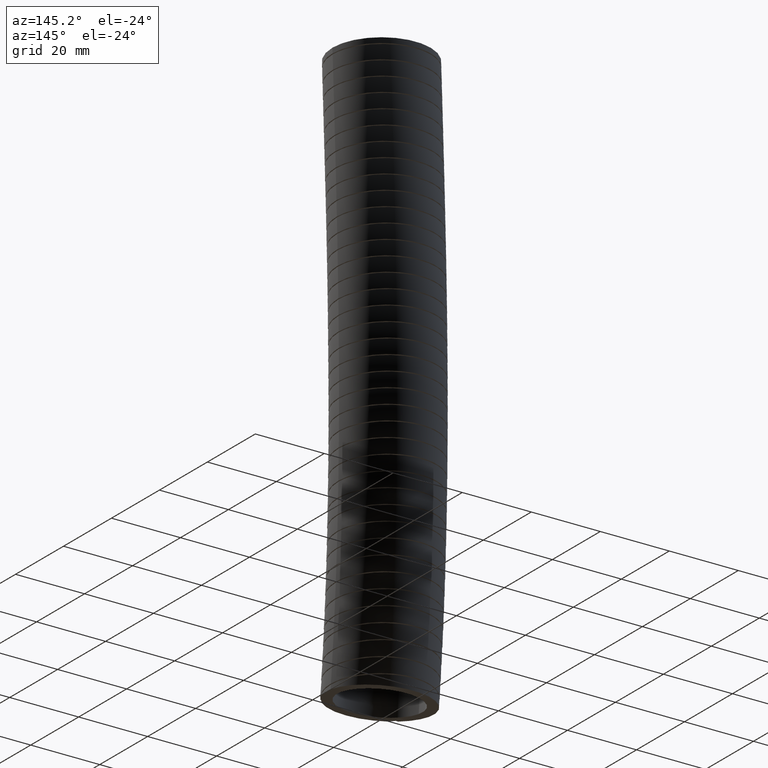
[diagram: clean part render]
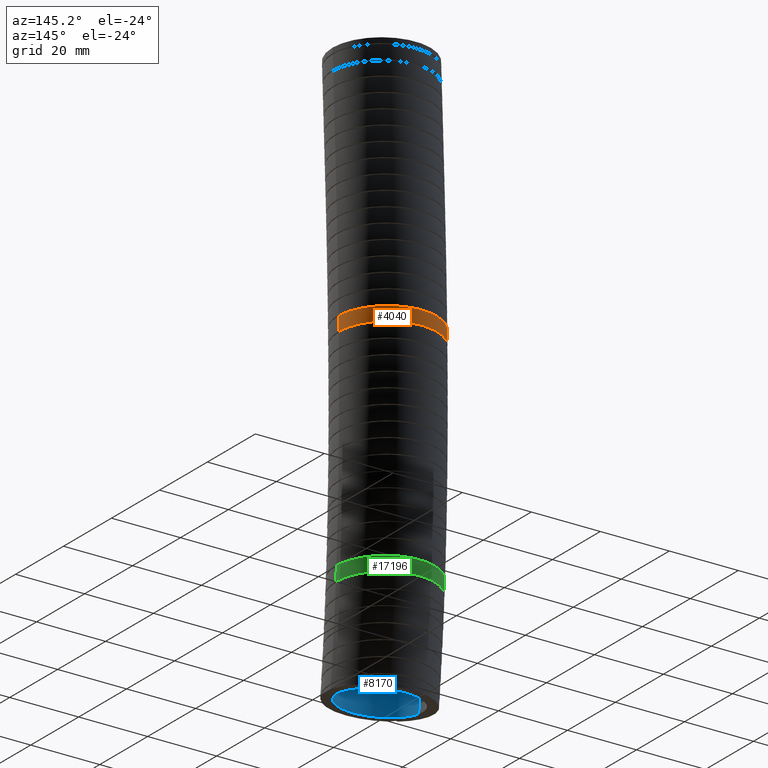
[diagram: same view with three faces highlighted in distinct colors, each labeled with its STEP entity id]
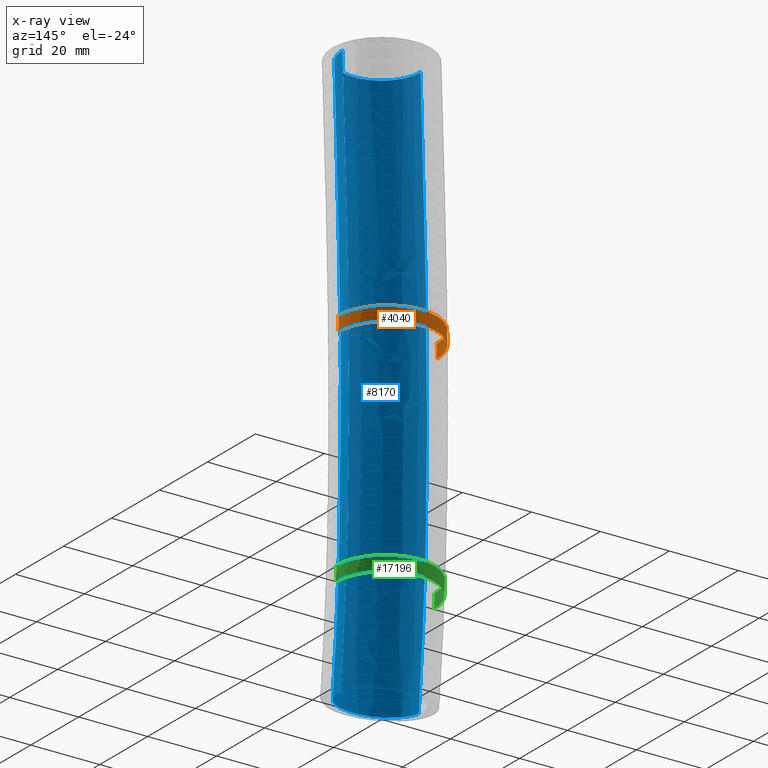
[diagram: x-ray of the same camera — body ghosted, the three highlighted faces saturated]
A machine part, auxiliary view with three faces highlighted in distinct colors.
The next image is the same camera in x-ray (body ghosted, the three faces saturated) — at least one of them is partly hidden behind the body in this view.
Their STEP definitions:

[orange] entity #4040 — the highlighted face is a freeform B-spline surface patch.
#95 = CARTESIAN_POINT ( 'NONE',  ( 0.5599999999999999400, -0.02999999999999999900, -6.569999999999999400 ) ) ;
#96 = CARTESIAN_POINT ( 'NONE',  ( 0.5600000000000000500, -0.01258014398173745700, -6.380031713690431900 ) ) ;
#97 = CARTESIAN_POINT ( 'NONE',  ( 0.5600000000000000500, 0.07545784880698555600, -5.419953363865133200 ) ) ;
#98 = CARTESIAN_POINT ( 'NONE',  ( 0.5600000000000000500, 0.1443774054838786700, -3.232434222864089000 ) ) ;
#99 = CARTESIAN_POINT ( 'NONE',  ( 0.5600000000000000500, 0.05489119717643119900, -1.228947034284316500 ) ) ;
#100 = CARTESIAN_POINT ( 'NONE',  ( 0.5600000000000000500, 0.0000000000000000000, 0.0000000000000000000 ) ) ;
#101 = CARTESIAN_POINT ( 'NONE',  ( 0.5599999999999999400, 1.079646258180001500, -6.721938085110752900 ) ) ;
#102 = CARTESIAN_POINT ( 'NONE',  ( 0.5599999999999999400, 1.097787370148357100, -6.524540619502538200 ) ) ;
#103 = CARTESIAN_POINT ( 'NONE',  ( 0.5600000000000000500, 1.189470509376095600, -5.526916033196593000 ) ) ;
#104 = CARTESIAN_POINT ( 'NONE',  ( 0.5600000000000000500, 1.265865288775000400, -3.259871941086935900 ) ) ;
#105 = CARTESIAN_POINT ( 'NONE',  ( 0.5600000000000001600, 1.175456879146091100, -1.239378647153338800 ) ) ;
#106 = CARTESIAN_POINT ( 'NONE',  ( 0.5600000000000000500, 1.120000000000000100, 0.0000000000000000000 ) ) ;
#107 = CARTESIAN_POINT ( 'NONE',  ( -0.5599999999999997200, 1.079646258180001500, -6.721938085110752900 ) ) ;
#108 = CARTESIAN_POINT ( 'NONE',  ( -0.5599999999999997200, 1.097787370148357100, -6.524540619502538200 ) ) ;
#109 = CARTESIAN_POINT ( 'NONE',  ( -0.5599999999999999400, 1.189470509376095600, -5.526916033196593000 ) ) ;
#110 = CARTESIAN_POINT ( 'NONE',  ( -0.5599999999999997200, 1.265865288775000400, -3.259871941086935900 ) ) ;
#111 = CARTESIAN_POINT ( 'NONE',  ( -0.5599999999999999400, 1.175456879146091100, -1.239378647153338800 ) ) ;
#112 = CARTESIAN_POINT ( 'NONE',  ( -0.5599999999999999400, 1.120000000000000100, 0.0000000000000000000 ) ) ;
#113 = CARTESIAN_POINT ( 'NONE',  ( -0.5599999999999999400, -0.02999999999999993300, -6.569999999999999400 ) ) ;
#114 = CARTESIAN_POINT ( 'NONE',  ( -0.5600000000000000500, -0.01258014398173738600, -6.380031713690431900 ) ) ;
#115 = CARTESIAN_POINT ( 'NONE',  ( -0.5600000000000000500, 0.07545784880698562500, -5.419953363865133200 ) ) ;
#116 = CARTESIAN_POINT ( 'NONE',  ( -0.5600000000000000500, 0.1443774054838787000, -3.232434222864089000 ) ) ;
#117 = CARTESIAN_POINT ( 'NONE',  ( -0.5600000000000000500, 0.05489119717643127500, -1.228947034284316500 ) ) ;
#118 = CARTESIAN_POINT ( 'NONE',  ( -0.5600000000000000500, 6.858022075225177600E-017, 0.0000000000000000000 ) ) ;
#119 = CARTESIAN_POINT ( 'NONE',  ( -0.5600000000000000500, -1.139646258180001100, -6.418061914889245900 ) ) ;
#120 = CARTESIAN_POINT ( 'NONE',  ( -0.5600000000000000500, -1.122947658111831800, -6.235522807878326500 ) ) ;
#121 = CARTESIAN_POINT ( 'NONE',  ( -0.5600000000000001600, -1.038554811762124200, -5.312990694533672500 ) ) ;
#122 = CARTESIAN_POINT ( 'NONE',  ( -0.5600000000000002800, -0.9771104778072428100, -3.204996504641241200 ) ) ;
#123 = CARTESIAN_POINT ( 'NONE',  ( -0.5600000000000002800, -1.065674484793228200, -1.218515421415294200 ) ) ;
#124 = CARTESIAN_POINT ( 'NONE',  ( -0.5600000000000001600, -1.119999999999999900, 0.0000000000000000000 ) ) ;
#125 = CARTESIAN_POINT ( 'NONE',  ( 0.5599999999999999400, -1.139646258180001100, -6.418061914889245900 ) ) ;
#126 = CARTESIAN_POINT ( 'NONE',  ( 0.5599999999999999400, -1.122947658111831800, -6.235522807878326500 ) ) ;
#127 = CARTESIAN_POINT ( 'NONE',  ( 0.5600000000000000500, -1.038554811762124200, -5.312990694533672500 ) ) ;
#128 = CARTESIAN_POINT ( 'NONE',  ( 0.5600000000000000500, -0.9771104778072428100, -3.204996504641241200 ) ) ;
#3286 = EDGE_CURVE ( 'NONE', #8610, #8572, #10671, .T. ) ;
#3982 = EDGE_LOOP ( 'NONE', ( #4015, #4033, #4027, #4020 ) ) ;
#3997 = EDGE_CURVE ( 'NONE', #8569, #8571, #11110, .T. ) ;
#4015 = ORIENTED_EDGE ( 'NONE', *, *, #8570, .F. ) ;
#4020 = ORIENTED_EDGE ( 'NONE', *, *, #3286, .T. ) ;
#4027 = ORIENTED_EDGE ( 'NONE', *, *, #8607, .T. ) ;
#4033 = ORIENTED_EDGE ( 'NONE', *, *, #3997, .T. ) ;
#4040 = ADVANCED_FACE ( 'NONE', ( #11112 ), #11165, .T. ) ;
#6721 = CARTESIAN_POINT ( 'NONE',  ( -0.5600000000000000500, 0.09975136047266827700, -2.788193642924669600 ) ) ;
#6734 = CARTESIAN_POINT ( 'NONE',  ( -0.5600000000000000500, 0.1023773698500384900, -2.948170664740897200 ) ) ;
#6735 = CARTESIAN_POINT ( 'NONE',  ( -0.5600000000000000500, 0.1015870456461830800, -2.894848570316842300 ) ) ;
#6736 = CARTESIAN_POINT ( 'NONE',  ( -0.5600000000000000500, 0.1007101419526706100, -2.841522830388337500 ) ) ;
#6737 = CARTESIAN_POINT ( 'NONE',  ( -0.5600000000000000500, 0.09975136047266827700, -2.788193642924669600 ) ) ;
#6738 = CARTESIAN_POINT ( 'NONE',  ( 0.5599999999999999400, 0.09975136046577001700, -2.788193642732824900 ) ) ;
#6739 = B_SPLINE_CURVE_WITH_KNOTS ( 'NONE', 3,
 ( #6737, #6736, #6735, #6734 ),
 .UNSPECIFIED., .F., .F.,
 ( 4, 4 ),
 ( 0.4236618517434954100, 0.4479899675309305100 ),
 .UNSPECIFIED. ) ;
#6740 = CARTESIAN_POINT ( 'NONE',  ( -0.5600000000000000500, 0.1023773698500384900, -2.948170664740897200 ) ) ;
#7108 = B_SPLINE_CURVE_WITH_KNOTS ( 'NONE', 3,
 ( #7125, #7124, #7123, #7120 ),
 .UNSPECIFIED., .F., .F.,
 ( 4, 4 ),
 ( 0.4236618517143137000, 0.4479899675017429700 ),
 .UNSPECIFIED. ) ;
#7117 = CARTESIAN_POINT ( 'NONE',  ( 0.5600000000000000500, 0.1023773698443505900, -2.948170664549020900 ) ) ;
#7120 = CARTESIAN_POINT ( 'NONE',  ( 0.5600000000000000500, 0.1023773698443505900, -2.948170664549020900 ) ) ;
#7123 = CARTESIAN_POINT ( 'NONE',  ( 0.5600000000000000500, 0.1015870456431309000, -2.894848570124927800 ) ) ;
#7124 = CARTESIAN_POINT ( 'NONE',  ( 0.5600000000000000500, 0.1007101419494165600, -2.841522830196426600 ) ) ;
#7125 = CARTESIAN_POINT ( 'NONE',  ( 0.5599999999999999400, 0.09975136046577001700, -2.788193642732824900 ) ) ;
#8569 = VERTEX_POINT ( 'NONE', #6721 ) ;
#8570 = EDGE_CURVE ( 'NONE', #8569, #8572, #6739, .T. ) ;
#8571 = VERTEX_POINT ( 'NONE', #6738 ) ;
#8572 = VERTEX_POINT ( 'NONE', #6740 ) ;
#8607 = EDGE_CURVE ( 'NONE', #8571, #8610, #7108, .T. ) ;
#8610 = VERTEX_POINT ( 'NONE', #7117 ) ;
#10671 = B_SPLINE_CURVE_WITH_KNOTS ( 'NONE', 3,
 ( #10754, #10753, #10752, #10751, #10750, #10749, #10748, #10747, #10746, #10745, #10744, #10743, #10742, #10741, #10740, #10739, #10738, #10737, #10736, #10735, #10734, #10733, #10732, #10731, #10730, #10729, #10728, #10727, #10726, #10725, #10724, #10723, #10722, #10721, #10720, #10794, #10793, #10792, #10791, #10790, #10789, #10788, #10787, #10786, #10785, #10784, #10783, #10782, #10781 ),
 .UNSPECIFIED., .F., .F.,
 ( 4, 2, 2, 2, 2, 2, 2, 2, 2, 2, 2, 2, 2, 2, 2, 2, 2, 2, 1, 2, 2, 2, 2, 2, 4 ),
 ( 0.0000000000000000000, 0.001404168744246958500, 0.002808337488493918200, 0.005616674976987833000, 0.007020843721234789500, 0.008425012465481744200, 0.01123334995397566200, 0.01263751869822261900, 0.01404168744246957500, 0.01685002493096349200, 0.01965836241945740800, 0.02106253116370436500, 0.02246669990795132500, 0.02527503739644524500, 0.02667920614069220100, 0.02808337488493916100, 0.03089171237343307400, 0.03229588111768003800, 0.03370004986192699100, 0.03510421860617395100, 0.03650838735042091100, 0.03931672483891483800, 0.04072089358316179100, 0.04212506232740875800, 0.04493339981590269100 ),
 .UNSPECIFIED. ) ;
#10720 = CARTESIAN_POINT ( 'NONE',  ( -0.3414170387211084600, 0.5463829283431063100, -2.948170664740898100 ) ) ;
#10721 = CARTESIAN_POINT ( 'NONE',  ( -0.3265335964584056800, 0.5574311805196637800, -2.948170664740894500 ) ) ;
#10722 = CARTESIAN_POINT ( 'NONE',  ( -0.2806239627746137100, 0.5881054366915500200, -2.948170664740895000 ) ) ;
#10723 = CARTESIAN_POINT ( 'NONE',  ( -0.2484374304007585200, 0.6052881078929484000, -2.948170664740898900 ) ) ;
#10724 = CARTESIAN_POINT ( 'NONE',  ( -0.1978442043573522500, 0.6262791682959105700, -2.948170664740898900 ) ) ;
#10725 = CARTESIAN_POINT ( 'NONE',  ( -0.1805914654711290600, 0.6324733266288334900, -2.948170664740896700 ) ) ;
#10726 = CARTESIAN_POINT ( 'NONE',  ( -0.1452845763758061600, 0.6432047478744548100, -2.948170664740897200 ) ) ;
#10727 = CARTESIAN_POINT ( 'NONE',  ( -0.1273819560145552400, 0.6476885546410771100, -2.948170664740896700 ) ) ;
#10728 = CARTESIAN_POINT ( 'NONE',  ( -0.07356212001106085500, 0.6584074480926992400, -2.948170664740896700 ) ) ;
#10729 = CARTESIAN_POINT ( 'NONE',  ( -0.03728025248635665600, 0.6620146526968466700, -2.948170664740896300 ) ) ;
#10730 = CARTESIAN_POINT ( 'NONE',  ( 0.01775056621893630200, 0.6620728975815745000, -2.948170664740896700 ) ) ;
#10731 = CARTESIAN_POINT ( 'NONE',  ( 0.03629162827896629400, 0.6611791344703297200, -2.948170664740896700 ) ) ;
#10732 = CARTESIAN_POINT ( 'NONE',  ( 0.07286854461341509000, 0.6575991476308336000, -2.948170664740896700 ) ) ;
#10733 = CARTESIAN_POINT ( 'NONE',  ( 0.09095492713478625600, 0.6549228734143172100, -2.948170664740895000 ) ) ;
#10734 = CARTESIAN_POINT ( 'NONE',  ( 0.1446215309929360400, 0.6442952214717948500, -2.948170664740895800 ) ) ;
#10735 = CARTESIAN_POINT ( 'NONE',  ( 0.1796150278469897700, 0.6337705369040074200, -2.948170664740896700 ) ) ;
#10736 = CARTESIAN_POINT ( 'NONE',  ( 0.2479676513044745400, 0.6055530057575222400, -2.948170664740898100 ) ) ;
#10737 = CARTESIAN_POINT ( 'NONE',  ( 0.2802142653914843100, 0.5883160881876272600, -2.948170664740895800 ) ) ;
#10738 = CARTESIAN_POINT ( 'NONE',  ( 0.3257442202917306700, 0.5579891178537431700, -2.948170664740895000 ) ) ;
#10739 = CARTESIAN_POINT ( 'NONE',  ( 0.3404477512898880800, 0.5471277799888582000, -2.948170664740897200 ) ) ;
#10740 = CARTESIAN_POINT ( 'NONE',  ( 0.3688872076710002500, 0.5238664355629565300, -2.948170664740896700 ) ) ;
#10741 = CARTESIAN_POINT ( 'NONE',  ( 0.3826597375237125200, 0.5114170867867949800, -2.948170664740896700 ) ) ;
#10742 = CARTESIAN_POINT ( 'NONE',  ( 0.4216267595045676800, 0.4725373677213189300, -2.948170664740896700 ) ) ;
#10743 = CARTESIAN_POINT ( 'NONE',  ( 0.4447902434675233300, 0.4443774425444970700, -2.948170664740899400 ) ) ;
#10744 = CARTESIAN_POINT ( 'NONE',  ( 0.4753529081005826700, 0.3988086133803794800, -2.948170664740898900 ) ) ;
#10745 = CARTESIAN_POINT ( 'NONE',  ( 0.4848662811920636500, 0.3830076261960706500, -2.948170664740896700 ) ) ;
#10746 = CARTESIAN_POINT ( 'NONE',  ( 0.5023102403610748600, 0.3504763844917743200, -2.948170664740896300 ) ) ;
#10747 = CARTESIAN_POINT ( 'NONE',  ( 0.5101613010601063800, 0.3339076073019122100, -2.948170664740896700 ) ) ;
#10748 = CARTESIAN_POINT ( 'NONE',  ( 0.5311837530693351800, 0.2833203591762896700, -2.948170664740898100 ) ) ;
#10749 = CARTESIAN_POINT ( 'NONE',  ( 0.5418483653191755700, 0.2484293087476866200, -2.948170664740898500 ) ) ;
#10750 = CARTESIAN_POINT ( 'NONE',  ( 0.5527013914768943400, 0.1943022063954362700, -2.948170664740898100 ) ) ;
#10751 = CARTESIAN_POINT ( 'NONE',  ( 0.5554446959607437500, 0.1759629088046533200, -2.948170664740895000 ) ) ;
#10752 = CARTESIAN_POINT ( 'NONE',  ( 0.5590852859160935200, 0.1392837251369641600, -2.948170664740895000 ) ) ;
#10753 = CARTESIAN_POINT ( 'NONE',  ( 0.5600000000000001600, 0.1208686631449612000, -2.948170664549020900 ) ) ;
#10754 = CARTESIAN_POINT ( 'NONE',  ( 0.5600000000000000500, 0.1023773698443505900, -2.948170664549020900 ) ) ;
#10781 = CARTESIAN_POINT ( 'NONE',  ( -0.5600000000000000500, 0.1023773698500384900, -2.948170664740897200 ) ) ;
#10782 = CARTESIAN_POINT ( 'NONE',  ( -0.5600000000000000500, 0.1390471262310929700, -2.948170664740896300 ) ) ;
#10783 = CARTESIAN_POINT ( 'NONE',  ( -0.5564283743187578000, 0.1753307425332568900, -2.948170664740896700 ) ) ;
#10784 = CARTESIAN_POINT ( 'NONE',  ( -0.5457447061607729700, 0.2291803309623980400, -2.948170664740896300 ) ) ;
#10785 = CARTESIAN_POINT ( 'NONE',  ( -0.5412645369303194000, 0.2471126229576055000, -2.948170664740898100 ) ) ;
#10786 = CARTESIAN_POINT ( 'NONE',  ( -0.5305601949423803800, 0.2823996419276605400, -2.948170664740898900 ) ) ;
#10787 = CARTESIAN_POINT ( 'NONE',  ( -0.5243780864758154100, 0.2996471233843458500, -2.948170664740896300 ) ) ;
#10788 = CARTESIAN_POINT ( 'NONE',  ( -0.5034159925962857800, 0.3502368158187620900, -2.948170664740896300 ) ) ;
#10789 = CARTESIAN_POINT ( 'NONE',  ( -0.4862432451638419300, 0.3824372530410566400, -2.948170664740895800 ) ) ;
#10790 = CARTESIAN_POINT ( 'NONE',  ( -0.4555577146298218100, 0.4283871339545716700, -2.948170664740897200 ) ) ;
#10791 = CARTESIAN_POINT ( 'NONE',  ( -0.4445229103762457500, 0.4432573031696378500, -2.948170664740899800 ) ) ;
#10792 = CARTESIAN_POINT ( 'NONE',  ( -0.4212828705394923700, 0.4715618970799176900, -2.948170664740900700 ) ) ;
#10793 = CARTESIAN_POINT ( 'NONE',  ( -0.3967660422631099600, 0.4985963675400342800, -2.948170664740894100 ) ) ;
#10794 = CARTESIAN_POINT ( 'NONE',  ( -0.3697306610520666400, 0.5231254322152117900, -2.948170664740898100 ) ) ;
#10838 = CARTESIAN_POINT ( 'NONE',  ( 0.5600000000000001600, -1.065674484793228500, -1.218515421415294200 ) ) ;
#10840 = CARTESIAN_POINT ( 'NONE',  ( 0.5600000000000000500, -1.120000000000000100, 0.0000000000000000000 ) ) ;
#11084 = CARTESIAN_POINT ( 'NONE',  ( -0.03737940492412749500, 0.6594445474153304300, -2.788193642924671900 ) ) ;
#11085 = CARTESIAN_POINT ( 'NONE',  ( -0.07371762864864431200, 0.6558015837164065100, -2.788193642924669600 ) ) ;
#11086 = CARTESIAN_POINT ( 'NONE',  ( -0.1273898038415905700, 0.6451054178955022400, -2.788193642924669600 ) ) ;
#11087 = CARTESIAN_POINT ( 'NONE',  ( -0.1451403170750932000, 0.6406616961166915500, -2.788193642924669200 ) ) ;
#11088 = CARTESIAN_POINT ( 'NONE',  ( -0.1803535722871740000, 0.6299715584665849200, -2.788193642924669600 ) ) ;
#11089 = CARTESIAN_POINT ( 'NONE',  ( -0.1978080369518444800, 0.6237137075645121700, -2.788193642924668800 ) ) ;
#11090 = CARTESIAN_POINT ( 'NONE',  ( -0.2485837767633583600, 0.6026423350351281000, -2.788193642924669600 ) ) ;
#11091 = CARTESIAN_POINT ( 'NONE',  ( -0.2807314081790821000, 0.5854443027583150500, -2.788193642924671000 ) ) ;
#11092 = CARTESIAN_POINT ( 'NONE',  ( -0.3264045419155646200, 0.5549326407125152500, -2.788193642924669600 ) ) ;
#11093 = CARTESIAN_POINT ( 'NONE',  ( -0.3412738367695895600, 0.5439090335191870700, -2.788193642924670100 ) ) ;
#11094 = CARTESIAN_POINT ( 'NONE',  ( -0.3697483399497191700, 0.5205243443279680100, -2.788193642924670100 ) ) ;
#11095 = CARTESIAN_POINT ( 'NONE',  ( -0.3833075319155080900, 0.5082152824716840200, -2.788193642924671400 ) ) ;
#11096 = CARTESIAN_POINT ( 'NONE',  ( -0.4220076278159640700, 0.4694895145907890800, -2.788193642924671000 ) ) ;
#11097 = CARTESIAN_POINT ( 'NONE',  ( -0.4451900213954157500, 0.4412914797596441700, -2.788193642924670100 ) ) ;
#11098 = CARTESIAN_POINT ( 'NONE',  ( -0.4759160315022546400, 0.3953130217450849200, -2.788193642924669600 ) ) ;
#11099 = CARTESIAN_POINT ( 'NONE',  ( -0.4854146900739430600, 0.3794469626783992200, -2.788193642924671900 ) ) ;
#11100 = CARTESIAN_POINT ( 'NONE',  ( -0.5026574585781088400, 0.3471567981545591900, -2.788193642924672300 ) ) ;
#11101 = CARTESIAN_POINT ( 'NONE',  ( -0.5182441112026321400, 0.3141648689627832300, -2.788193642924669600 ) ) ;
#11102 = CARTESIAN_POINT ( 'NONE',  ( -0.5305576033329548700, 0.2797859665431360300, -2.788193642924670100 ) ) ;
#11103 = CARTESIAN_POINT ( 'NONE',  ( -0.5412066388877810900, 0.2447017651583888700, -2.788193642924669200 ) ) ;
#11104 = CARTESIAN_POINT ( 'NONE',  ( -0.5457152213633347200, 0.2267048840653509700, -2.788193642924670100 ) ) ;
#11105 = CARTESIAN_POINT ( 'NONE',  ( -0.5564560435010486000, 0.1725897073887346100, -2.788193642924668800 ) ) ;
#11106 = CARTESIAN_POINT ( 'NONE',  ( -0.5599999999999999400, 0.1362831251916366800, -2.788193642924671000 ) ) ;
#11107 = CARTESIAN_POINT ( 'NONE',  ( -0.5600000000000000500, 0.09975136047266827700, -2.788193642924669600 ) ) ;
#11110 = B_SPLINE_CURVE_WITH_KNOTS ( 'NONE', 3,
 ( #11107, #11106, #11105, #11104, #11103, #11102, #11101, #11100, #11099, #11098, #11097, #11096, #11095, #11094, #11093, #11092, #11091, #11090, #11089, #11088, #11087, #11086, #11085, #11084, #11157, #11156, #11155, #11154, #11153, #11152, #11151, #11150, #11149, #11148, #11147, #11146, #11145, #11144, #11143, #11142, #11141, #11140, #11139, #11138, #11137, #11136, #11135, #11134, #11133 ),
 .UNSPECIFIED., .F., .F.,
 ( 4, 2, 2, 1, 2, 2, 2, 2, 2, 2, 2, 2, 2, 2, 2, 2, 2, 2, 2, 2, 2, 2, 2, 2, 4 ),
 ( 0.04445943776125067800, 0.04723755649063758600, 0.04862661585533103300, 0.05001567522002448700, 0.05140473458471794100, 0.05279379394941139500, 0.05557191267879829600, 0.05696097204349175000, 0.05835003140818519800, 0.06112815013757209200, 0.06251720950226553900, 0.06390626886695897900, 0.06668438759634587300, 0.06807344696103931300, 0.06946250632573276700, 0.07085156569042620800, 0.07224062505511964800, 0.07501874378450654200, 0.07779686251389343600, 0.08057498124328033000, 0.08196404060797378400, 0.08335309997266723800, 0.08474215933736067900, 0.08613121870205413300, 0.08890933743144102700 ),
 .UNSPECIFIED. ) ;
#11112 = FACE_OUTER_BOUND ( 'NONE', #3982, .T. ) ;
#11133 = CARTESIAN_POINT ( 'NONE',  ( 0.5599999999999999400, 0.09975136046577001700, -2.788193642732824900 ) ) ;
#11134 = CARTESIAN_POINT ( 'NONE',  ( 0.5599999999999999400, 0.1367346318048891200, -2.788193642732825800 ) ) ;
#11135 = CARTESIAN_POINT ( 'NONE',  ( 0.5563682803743111900, 0.1733340875153298600, -2.788193642924669200 ) ) ;
#11136 = CARTESIAN_POINT ( 'NONE',  ( 0.5454945679894780400, 0.2276598880146633000, -2.788193642924669600 ) ) ;
#11137 = CARTESIAN_POINT ( 'NONE',  ( 0.5409796988859693100, 0.2455405601931558400, -2.788193642924669200 ) ) ;
#11138 = CARTESIAN_POINT ( 'NONE',  ( 0.5303022361221336700, 0.2805319542452403600, -2.788193642924669600 ) ) ;
#11139 = CARTESIAN_POINT ( 'NONE',  ( 0.5241293665051618400, 0.2976951265522248500, -2.788193642924669200 ) ) ;
#11140 = CARTESIAN_POINT ( 'NONE',  ( 0.5101322193610764400, 0.3313631462887394200, -2.788193642924669200 ) ) ;
#11141 = CARTESIAN_POINT ( 'NONE',  ( 0.5023079755165863500, 0.3478680071456660700, -2.788193642924668800 ) ) ;
#11142 = CARTESIAN_POINT ( 'NONE',  ( 0.4849770974929951700, 0.3802070530052641400, -2.788193642924668800 ) ) ;
#11143 = CARTESIAN_POINT ( 'NONE',  ( 0.4754126878215960100, 0.3961175398778871700, -2.788193642924671000 ) ) ;
#11144 = CARTESIAN_POINT ( 'NONE',  ( 0.4447113956360510500, 0.4419012480232334400, -2.788193642924671000 ) ) ;
#11145 = CARTESIAN_POINT ( 'NONE',  ( 0.4215198430534604100, 0.4700496201177745100, -2.788193642924673600 ) ) ;
#11146 = CARTESIAN_POINT ( 'NONE',  ( 0.3697802539915087700, 0.5216779670058024900, -2.788193642924671400 ) ) ;
#11147 = CARTESIAN_POINT ( 'NONE',  ( 0.3409288786953542100, 0.5452925015107127300, -2.788193642924669600 ) ) ;
#11148 = CARTESIAN_POINT ( 'NONE',  ( 0.2800862219325918600, 0.5858111552595077800, -2.788193642924669600 ) ) ;
#11149 = CARTESIAN_POINT ( 'NONE',  ( 0.2479105804775771100, 0.6029809782366997200, -2.788193642924671000 ) ) ;
#11150 = CARTESIAN_POINT ( 'NONE',  ( 0.1969744794849729300, 0.6240289541747934300, -2.788193642924669600 ) ) ;
#11151 = CARTESIAN_POINT ( 'NONE',  ( 0.1794872203687740700, 0.6302633828319997900, -2.788193642924671400 ) ) ;
#11152 = CARTESIAN_POINT ( 'NONE',  ( 0.1443564890168922700, 0.6408694515727395600, -2.788193642924671000 ) ) ;
#11153 = CARTESIAN_POINT ( 'NONE',  ( 0.1266299541935377000, 0.6452818080101356800, -2.788193642924670100 ) ) ;
#11154 = CARTESIAN_POINT ( 'NONE',  ( 0.09086069705692427500, 0.6523591565508958200, -2.788193642924670100 ) ) ;
#11155 = CARTESIAN_POINT ( 'NONE',  ( 0.07281796731157186300, 0.6550241075818626900, -2.788193642924670100 ) ) ;
#11156 = CARTESIAN_POINT ( 'NONE',  ( 0.03641328557919808200, 0.6585898741939988400, -2.788193642924669600 ) ) ;
#11157 = CARTESIAN_POINT ( 'NONE',  ( 0.01799291313700039600, 0.6594904573388628000, -2.788193642924672800 ) ) ;
#11158 = CARTESIAN_POINT ( 'NONE',  ( 0.5599999999999999400, -0.02999999999999999900, -6.569999999999999400 ) ) ;
#11159 = CARTESIAN_POINT ( 'NONE',  ( 0.5600000000000000500, -0.01258014398173745700, -6.380031713690431900 ) ) ;
#11160 = CARTESIAN_POINT ( 'NONE',  ( 0.5600000000000000500, 0.07545784880698555600, -5.419953363865133200 ) ) ;
#11161 = CARTESIAN_POINT ( 'NONE',  ( 0.5600000000000000500, 0.1443774054838786700, -3.232434222864089000 ) ) ;
#11162 = CARTESIAN_POINT ( 'NONE',  ( 0.5600000000000000500, 0.05489119717643119900, -1.228947034284316500 ) ) ;
#11163 = CARTESIAN_POINT ( 'NONE',  ( 0.5600000000000000500, 0.0000000000000000000, 0.0000000000000000000 ) ) ;
#11165 =( BOUNDED_SURFACE ( )  B_SPLINE_SURFACE ( 3, 3, ( 
 ( #11163, #11162, #11161, #11160, #11159, #11158 ),
 ( #10840, #10838, #128, #127, #126, #125 ),
 ( #124, #123, #122, #121, #120, #119 ),
 ( #118, #117, #116, #115, #114, #113 ),
 ( #112, #111, #110, #109, #108, #107 ),
 ( #106, #105, #104, #103, #102, #101 ),
 ( #100, #99, #98, #97, #96, #95 ) ),
 .UNSPECIFIED., .F., .F., .F. ) 
 B_SPLINE_SURFACE_WITH_KNOTS ( ( 4, 3, 4 ),
 ( 4, 1, 1, 4 ),
 ( 0.0000000000000000000, 0.5000000000000000000, 1.000000000000000000 ),
 ( 0.0000000000000000000, 0.5600000000000000500, 0.9129383075960209000, 1.000000000000000000 ),
 .UNSPECIFIED. ) 
 GEOMETRIC_REPRESENTATION_ITEM ( )  RATIONAL_B_SPLINE_SURFACE ( (
 ( 1.000000000000000000, 1.000000000000000000, 1.000000000000000000, 1.000000000000000000, 1.000000000000000000, 1.000000000000000000),
 ( 0.3333333333333333100, 0.3333333333333333100, 0.3333333333333333100, 0.3333333333333333100, 0.3333333333333333100, 0.3333333333333333100),
 ( 0.3333333333333333100, 0.3333333333333333100, 0.3333333333333333100, 0.3333333333333333100, 0.3333333333333333100, 0.3333333333333333100),
 ( 1.000000000000000000, 1.000000000000000000, 1.000000000000000000, 1.000000000000000000, 1.000000000000000000, 1.000000000000000000),
 ( 0.3333333333333333100, 0.3333333333333333100, 0.3333333333333333100, 0.3333333333333333100, 0.3333333333333333100, 0.3333333333333333100),
 ( 0.3333333333333333100, 0.3333333333333333100, 0.3333333333333333100, 0.3333333333333333100, 0.3333333333333333100, 0.3333333333333333100),
 ( 1.000000000000000000, 1.000000000000000000, 1.000000000000000000, 1.000000000000000000, 1.000000000000000000, 1.000000000000000000) ) ) 
 REPRESENTATION_ITEM ( '' )  SURFACE ( )  );

[blue] entity #8170 — the highlighted face is a freeform B-spline surface patch.
#4160 = FACE_OUTER_BOUND ( 'NONE', #8180, .T. ) ;
#4170 = CARTESIAN_POINT ( 'NONE',  ( -0.4450000000000001200, -0.8097843546809679900, -5.334956242699953500 ) ) ;
#4171 = CARTESIAN_POINT ( 'NONE',  ( -0.4450000000000001200, -0.7468049303456733000, -3.210631036062004700 ) ) ;
#4172 = CARTESIAN_POINT ( 'NONE',  ( -0.4450000000000001200, -0.8355583179601732100, -1.220657627629468500 ) ) ;
#4173 = CARTESIAN_POINT ( 'NONE',  ( -0.4450000000000001200, -0.8900000000000001200, 0.0000000000000000000 ) ) ;
#4174 = CARTESIAN_POINT ( 'NONE',  ( 0.4449999999999999500, -0.9117724730180365400, -6.449263485938775600 ) ) ;
#4175 = CARTESIAN_POINT ( 'NONE',  ( 0.4449999999999999500, -0.8949257578886873300, -6.265198743893312100 ) ) ;
#4176 = CARTESIAN_POINT ( 'NONE',  ( 0.4449999999999999500, -0.8097843546809679900, -5.334956242699953500 ) ) ;
#4177 = CARTESIAN_POINT ( 'NONE',  ( 0.4450000000000000600, -0.7468049303456733000, -3.210631036062004700 ) ) ;
#4178 = CARTESIAN_POINT ( 'NONE',  ( 0.4450000000000000600, -0.8355583179601732100, -1.220657627629468500 ) ) ;
#4179 = CARTESIAN_POINT ( 'NONE',  ( 0.4450000000000000600, -0.8900000000000001200, 0.0000000000000000000 ) ) ;
#4180 = CARTESIAN_POINT ( 'NONE',  ( 0.4449999999999999500, -0.02999999999999999900, -6.569999999999999400 ) ) ;
#4181 = CARTESIAN_POINT ( 'NONE',  ( 0.4449999999999999500, -0.01258014398173745700, -6.380031713690431900 ) ) ;
#4182 = CARTESIAN_POINT ( 'NONE',  ( 0.4449999999999999500, 0.07545784880698555600, -5.419953363865133200 ) ) ;
#4183 = CARTESIAN_POINT ( 'NONE',  ( 0.4450000000000000100, 0.1443774054838786700, -3.232434222864089000 ) ) ;
#4184 = CARTESIAN_POINT ( 'NONE',  ( 0.4450000000000000100, 0.05489119717643119900, -1.228947034284316500 ) ) ;
#4185 = CARTESIAN_POINT ( 'NONE',  ( 0.4450000000000000100, 0.0000000000000000000, 0.0000000000000000000 ) ) ;
#4192 =( BOUNDED_SURFACE ( )  B_SPLINE_SURFACE ( 3, 3, ( 
 ( #4185, #4184, #4183, #4182, #4181, #4180 ),
 ( #4179, #4178, #4177, #4176, #4175, #4174 ),
 ( #4173, #4172, #4171, #4170, #4224, #4223 ),
 ( #4222, #4221, #4220, #4219, #4218, #4217 ),
 ( #4216, #4215, #4214, #4213, #4212, #4211 ),
 ( #4210, #4209, #4208, #4207, #4206, #4205 ),
 ( #4204, #4203, #4202, #4201, #4200, #4199 ) ),
 .UNSPECIFIED., .F., .F., .F. ) 
 B_SPLINE_SURFACE_WITH_KNOTS ( ( 4, 3, 4 ),
 ( 4, 1, 1, 4 ),
 ( 0.0000000000000000000, 0.5000000000000000000, 1.000000000000000000 ),
 ( 0.0000000000000000000, 0.5600000000000000500, 0.9129383075960209000, 1.000000000000000000 ),
 .UNSPECIFIED. ) 
 GEOMETRIC_REPRESENTATION_ITEM ( )  RATIONAL_B_SPLINE_SURFACE ( (
 ( 1.000000000000000000, 1.000000000000000000, 1.000000000000000000, 1.000000000000000000, 1.000000000000000000, 1.000000000000000000),
 ( 0.3333333333333333100, 0.3333333333333333100, 0.3333333333333333100, 0.3333333333333333100, 0.3333333333333333100, 0.3333333333333333100),
 ( 0.3333333333333333100, 0.3333333333333333100, 0.3333333333333333100, 0.3333333333333333100, 0.3333333333333333100, 0.3333333333333333100),
 ( 1.000000000000000000, 1.000000000000000000, 1.000000000000000000, 1.000000000000000000, 1.000000000000000000, 1.000000000000000000),
 ( 0.3333333333333333100, 0.3333333333333333100, 0.3333333333333333100, 0.3333333333333333100, 0.3333333333333333100, 0.3333333333333333100),
 ( 0.3333333333333333100, 0.3333333333333333100, 0.3333333333333333100, 0.3333333333333333100, 0.3333333333333333100, 0.3333333333333333100),
 ( 1.000000000000000000, 1.000000000000000000, 1.000000000000000000, 1.000000000000000000, 1.000000000000000000, 1.000000000000000000) ) ) 
 REPRESENTATION_ITEM ( '' )  SURFACE ( )  );
#4199 = CARTESIAN_POINT ( 'NONE',  ( 0.4449999999999999500, -0.02999999999999999900, -6.569999999999999400 ) ) ;
#4200 = CARTESIAN_POINT ( 'NONE',  ( 0.4449999999999999500, -0.01258014398173745700, -6.380031713690431900 ) ) ;
#4201 = CARTESIAN_POINT ( 'NONE',  ( 0.4449999999999999500, 0.07545784880698555600, -5.419953363865133200 ) ) ;
#4202 = CARTESIAN_POINT ( 'NONE',  ( 0.4450000000000000100, 0.1443774054838786700, -3.232434222864089000 ) ) ;
#4203 = CARTESIAN_POINT ( 'NONE',  ( 0.4450000000000000100, 0.05489119717643119900, -1.228947034284316500 ) ) ;
#4204 = CARTESIAN_POINT ( 'NONE',  ( 0.4450000000000000100, 0.0000000000000000000, 0.0000000000000000000 ) ) ;
#4205 = CARTESIAN_POINT ( 'NONE',  ( 0.4449999999999999500, 0.8517724730180366000, -6.690736514061223200 ) ) ;
#4206 = CARTESIAN_POINT ( 'NONE',  ( 0.4449999999999999500, 0.8697654699252123100, -6.494864683487551600 ) ) ;
#4207 = CARTESIAN_POINT ( 'NONE',  ( 0.4449999999999999500, 0.9607000522949388200, -5.504950485030311900 ) ) ;
#4208 = CARTESIAN_POINT ( 'NONE',  ( 0.4450000000000000600, 1.035559741313430800, -3.254237409666174100 ) ) ;
#4209 = CARTESIAN_POINT ( 'NONE',  ( 0.4450000000000000600, 0.9453407123130359600, -1.237236440939165200 ) ) ;
#4210 = CARTESIAN_POINT ( 'NONE',  ( 0.4450000000000000600, 0.8900000000000001200, 0.0000000000000000000 ) ) ;
#4211 = CARTESIAN_POINT ( 'NONE',  ( -0.4449999999999997800, 0.8517724730180366000, -6.690736514061223200 ) ) ;
#4212 = CARTESIAN_POINT ( 'NONE',  ( -0.4449999999999999000, 0.8697654699252123100, -6.494864683487551600 ) ) ;
#4213 = CARTESIAN_POINT ( 'NONE',  ( -0.4449999999999999000, 0.9607000522949388200, -5.504950485030311900 ) ) ;
#4214 = CARTESIAN_POINT ( 'NONE',  ( -0.4449999999999999000, 1.035559741313430800, -3.254237409666174100 ) ) ;
#4215 = CARTESIAN_POINT ( 'NONE',  ( -0.4449999999999999000, 0.9453407123130359600, -1.237236440939165200 ) ) ;
#4216 = CARTESIAN_POINT ( 'NONE',  ( -0.4449999999999999000, 0.8900000000000001200, 0.0000000000000000000 ) ) ;
#4217 = CARTESIAN_POINT ( 'NONE',  ( -0.4449999999999999500, -0.02999999999999994300, -6.569999999999999400 ) ) ;
#4218 = CARTESIAN_POINT ( 'NONE',  ( -0.4449999999999999500, -0.01258014398173740300, -6.380031713690431900 ) ) ;
#4219 = CARTESIAN_POINT ( 'NONE',  ( -0.4449999999999999500, 0.07545784880698561100, -5.419953363865133200 ) ) ;
#4220 = CARTESIAN_POINT ( 'NONE',  ( -0.4450000000000000100, 0.1443774054838787000, -3.232434222864089000 ) ) ;
#4221 = CARTESIAN_POINT ( 'NONE',  ( -0.4450000000000000100, 0.05489119717643126800, -1.228947034284316500 ) ) ;
#4222 = CARTESIAN_POINT ( 'NONE',  ( -0.4450000000000000100, 5.449678256205722000E-017, 0.0000000000000000000 ) ) ;
#4223 = CARTESIAN_POINT ( 'NONE',  ( -0.4450000000000001200, -0.9117724730180365400, -6.449263485938775600 ) ) ;
#4224 = CARTESIAN_POINT ( 'NONE',  ( -0.4450000000000001200, -0.8949257578886873300, -6.265198743893312100 ) ) ;
#5882 = DIRECTION ( 'NONE',  ( 1.000000000000000000, 0.0000000000000000000, 0.0000000000000000000 ) ) ;
#5883 = DIRECTION ( 'NONE',  ( 0.0000000000000000000, 0.0000000000000000000, 1.000000000000000000 ) ) ;
#5884 = CARTESIAN_POINT ( 'NONE',  ( 0.0000000000000000000, 0.0000000000000000000, 0.0000000000000000000 ) ) ;
#5885 = AXIS2_PLACEMENT_3D ( 'NONE', #5884, #5883, #5882 ) ;
#5886 = CIRCLE ( 'NONE', #5885, 0.4450000000000000100 ) ;
#8169 = ORIENTED_EDGE ( 'NONE', *, *, #11357, .F. ) ;
#8170 = ADVANCED_FACE ( 'NONE', ( #4160 ), #4192, .F. ) ;
#8171 = ORIENTED_EDGE ( 'NONE', *, *, #11341, .T. ) ;
#8173 = ORIENTED_EDGE ( 'NONE', *, *, #13943, .F. ) ;
#8180 = EDGE_LOOP ( 'NONE', ( #8169, #8185, #8171, #8173 ) ) ;
#8185 = ORIENTED_EDGE ( 'NONE', *, *, #8430, .T. ) ;
#8430 = EDGE_CURVE ( 'NONE', #11364, #11340, #5886, .T. ) ;
#11333 = VERTEX_POINT ( 'NONE', #13916 ) ;
#11338 = VERTEX_POINT ( 'NONE', #13913 ) ;
#11340 = VERTEX_POINT ( 'NONE', #13912 ) ;
#11341 = EDGE_CURVE ( 'NONE', #11340, #11333, #13918, .T. ) ;
#11357 = EDGE_CURVE ( 'NONE', #11364, #11338, #14068, .T. ) ;
#11364 = VERTEX_POINT ( 'NONE', #14134 ) ;
#13912 = CARTESIAN_POINT ( 'NONE',  ( 0.4450000000000000100, 0.0000000000000000000, 0.0000000000000000000 ) ) ;
#13913 = CARTESIAN_POINT ( 'NONE',  ( -0.4450000000000000100, -0.02999999999999994300, -6.569999999999999400 ) ) ;
#13916 = CARTESIAN_POINT ( 'NONE',  ( 0.4449999999999999500, -0.02999999999999998800, -6.569999999999999400 ) ) ;
#13918 = B_SPLINE_CURVE_WITH_KNOTS ( 'NONE', 3,
 ( #13980, #13979, #13978, #13977, #13976, #13975 ),
 .UNSPECIFIED., .F., .F.,
 ( 4, 1, 1, 4 ),
 ( 0.0000000000000000000, 0.5600000000000000500, 0.9129383075960209000, 1.000000000000000000 ),
 .UNSPECIFIED. ) ;
#13943 = EDGE_CURVE ( 'NONE', #11338, #11333, #16888, .T. ) ;
#13975 = CARTESIAN_POINT ( 'NONE',  ( 0.4449999999999999500, -0.02999999999999998800, -6.569999999999999400 ) ) ;
#13976 = CARTESIAN_POINT ( 'NONE',  ( 0.4449999999999999500, -0.01258014398173745700, -6.380031713690431900 ) ) ;
#13977 = CARTESIAN_POINT ( 'NONE',  ( 0.4449999999999999500, 0.07545784880698555600, -5.419953363865133200 ) ) ;
#13978 = CARTESIAN_POINT ( 'NONE',  ( 0.4450000000000000100, 0.1443774054838786700, -3.232434222864089000 ) ) ;
#13979 = CARTESIAN_POINT ( 'NONE',  ( 0.4450000000000000100, 0.05489119717643119900, -1.228947034284316500 ) ) ;
#13980 = CARTESIAN_POINT ( 'NONE',  ( 0.4450000000000000100, 0.0000000000000000000, 0.0000000000000000000 ) ) ;
#14068 = B_SPLINE_CURVE_WITH_KNOTS ( 'NONE', 3,
 ( #14132, #14131, #14130, #14129, #14128, #14127 ),
 .UNSPECIFIED., .F., .F.,
 ( 4, 1, 1, 4 ),
 ( 0.0000000000000000000, 0.5600000000000000500, 0.9129383075960209000, 1.000000000000000000 ),
 .UNSPECIFIED. ) ;
#14127 = CARTESIAN_POINT ( 'NONE',  ( -0.4450000000000000100, -0.02999999999999994300, -6.569999999999999400 ) ) ;
#14128 = CARTESIAN_POINT ( 'NONE',  ( -0.4449999999999999500, -0.01258014398173740300, -6.380031713690431900 ) ) ;
#14129 = CARTESIAN_POINT ( 'NONE',  ( -0.4449999999999999500, 0.07545784880698561100, -5.419953363865133200 ) ) ;
#14130 = CARTESIAN_POINT ( 'NONE',  ( -0.4450000000000000100, 0.1443774054838787000, -3.232434222864089000 ) ) ;
#14131 = CARTESIAN_POINT ( 'NONE',  ( -0.4450000000000000100, 0.05489119717643126800, -1.228947034284316500 ) ) ;
#14132 = CARTESIAN_POINT ( 'NONE',  ( -0.4450000000000000100, 5.449678256205722000E-017, 0.0000000000000000000 ) ) ;
#14134 = CARTESIAN_POINT ( 'NONE',  ( -0.4450000000000000100, 5.449678256205722000E-017, 0.0000000000000000000 ) ) ;
#16888 = CIRCLE ( 'NONE', #16907, 0.4449999999999999500 ) ;
#16904 = DIRECTION ( 'NONE',  ( 1.000000000000000000, 0.0000000000000000000, 0.0000000000000000000 ) ) ;
#16905 = DIRECTION ( 'NONE',  ( 0.0000000000000000000, 0.1356590045631733400, 0.9907555876607150300 ) ) ;
#16906 = CARTESIAN_POINT ( 'NONE',  ( 0.0000000000000000000, -0.02999999999999998800, -6.569999999999999400 ) ) ;
#16907 = AXIS2_PLACEMENT_3D ( 'NONE', #16906, #16905, #16904 ) ;

[green] entity #17196 — the highlighted face is a freeform B-spline surface patch.
#11732 = EDGE_CURVE ( 'NONE', #12773, #11735, #16433, .T. ) ;
#11735 = VERTEX_POINT ( 'NONE', #16432 ) ;
#11917 = VERTEX_POINT ( 'NONE', #16505 ) ;
#12494 = VERTEX_POINT ( 'NONE', #16506 ) ;
#12495 = EDGE_CURVE ( 'NONE', #12494, #11917, #16527, .T. ) ;
#12773 = VERTEX_POINT ( 'NONE', #16522 ) ;
#16427 = CARTESIAN_POINT ( 'NONE',  ( 0.5600000000000000500, 0.05497352399463169300, -5.497130088863531900 ) ) ;
#16428 = CARTESIAN_POINT ( 'NONE',  ( 0.5600000000000000500, 0.05814820881240687100, -5.443894186636176100 ) ) ;
#16429 = CARTESIAN_POINT ( 'NONE',  ( 0.5600000000000000500, 0.06116079986611846300, -5.390651459310031000 ) ) ;
#16430 = CARTESIAN_POINT ( 'NONE',  ( 0.5600000000000000500, 0.06401602026727540300, -5.337402105756166500 ) ) ;
#16432 = CARTESIAN_POINT ( 'NONE',  ( 0.5600000000000000500, 0.05497352399463169300, -5.497130088863531900 ) ) ;
#16433 = B_SPLINE_CURVE_WITH_KNOTS ( 'NONE', 3,
 ( #16430, #16429, #16428, #16427 ),
 .UNSPECIFIED., .F., .F.,
 ( 4, 4 ),
 ( 0.8118236194258420200, 0.8361886038987037500 ),
 .UNSPECIFIED. ) ;
#16505 = CARTESIAN_POINT ( 'NONE',  ( -0.5599999999999999400, 0.05497352399473991200, -5.497130088862625100 ) ) ;
#16506 = CARTESIAN_POINT ( 'NONE',  ( -0.5600000000000000500, 0.06401602026739979000, -5.337402105755008300 ) ) ;
#16522 = CARTESIAN_POINT ( 'NONE',  ( 0.5600000000000000500, 0.06401602026727540300, -5.337402105756166500 ) ) ;
#16523 = CARTESIAN_POINT ( 'NONE',  ( -0.5599999999999999400, 0.05497352399473991200, -5.497130088862625100 ) ) ;
#16524 = CARTESIAN_POINT ( 'NONE',  ( -0.5600000000000000500, 0.05814820881246439400, -5.443894186635181300 ) ) ;
#16525 = CARTESIAN_POINT ( 'NONE',  ( -0.5600000000000000500, 0.06116079986617865100, -5.390651459308951800 ) ) ;
#16526 = CARTESIAN_POINT ( 'NONE',  ( -0.5600000000000000500, 0.06401602026739979000, -5.337402105755008300 ) ) ;
#16527 = B_SPLINE_CURVE_WITH_KNOTS ( 'NONE', 3,
 ( #16526, #16525, #16524, #16523 ),
 .UNSPECIFIED., .F., .F.,
 ( 4, 4 ),
 ( 0.8118236194256647200, 0.8361886038985647500 ),
 .UNSPECIFIED. ) ;
#17089 = EDGE_LOOP ( 'NONE', ( #17107, #18744, #18791, #18986 ) ) ;
#17107 = ORIENTED_EDGE ( 'NONE', *, *, #12495, .F. ) ;
#17196 = ADVANCED_FACE ( 'NONE', ( #17728 ), #17782, .T. ) ;
#17728 = FACE_OUTER_BOUND ( 'NONE', #17089, .T. ) ;
#17776 = CARTESIAN_POINT ( 'NONE',  ( 0.5600000000000000500, -0.01258014398173745700, -6.380031713690431900 ) ) ;
#17777 = CARTESIAN_POINT ( 'NONE',  ( 0.5600000000000000500, 0.07545784880698555600, -5.419953363865133200 ) ) ;
#17778 = CARTESIAN_POINT ( 'NONE',  ( 0.5600000000000000500, 0.1443774054838786700, -3.232434222864089000 ) ) ;
#17779 = CARTESIAN_POINT ( 'NONE',  ( 0.5600000000000000500, 0.05489119717643119900, -1.228947034284316500 ) ) ;
#17780 = CARTESIAN_POINT ( 'NONE',  ( 0.5600000000000000500, 0.0000000000000000000, 0.0000000000000000000 ) ) ;
#17782 =( BOUNDED_SURFACE ( )  B_SPLINE_SURFACE ( 3, 3, ( 
 ( #17780, #17779, #17778, #17777, #17776, #17825 ),
 ( #17824, #17823, #17822, #17821, #17820, #17819 ),
 ( #17818, #17817, #17816, #17815, #17814, #17813 ),
 ( #17812, #17811, #17810, #17809, #17808, #17807 ),
 ( #17806, #17805, #17804, #17803, #17802, #17801 ),
 ( #17800, #17799, #17798, #17797, #17796, #17795 ),
 ( #17794, #17793, #17792, #17791, #17790, #17789 ) ),
 .UNSPECIFIED., .F., .F., .F. ) 
 B_SPLINE_SURFACE_WITH_KNOTS ( ( 4, 3, 4 ),
 ( 4, 1, 1, 4 ),
 ( 0.0000000000000000000, 0.5000000000000000000, 1.000000000000000000 ),
 ( 0.0000000000000000000, 0.5600000000000000500, 0.9129383075960209000, 1.000000000000000000 ),
 .UNSPECIFIED. ) 
 GEOMETRIC_REPRESENTATION_ITEM ( )  RATIONAL_B_SPLINE_SURFACE ( (
 ( 1.000000000000000000, 1.000000000000000000, 1.000000000000000000, 1.000000000000000000, 1.000000000000000000, 1.000000000000000000),
 ( 0.3333333333333333100, 0.3333333333333333100, 0.3333333333333333100, 0.3333333333333333100, 0.3333333333333333100, 0.3333333333333333100),
 ( 0.3333333333333333100, 0.3333333333333333100, 0.3333333333333333100, 0.3333333333333333100, 0.3333333333333333100, 0.3333333333333333100),
 ( 1.000000000000000000, 1.000000000000000000, 1.000000000000000000, 1.000000000000000000, 1.000000000000000000, 1.000000000000000000),
 ( 0.3333333333333333100, 0.3333333333333333100, 0.3333333333333333100, 0.3333333333333333100, 0.3333333333333333100, 0.3333333333333333100),
 ( 0.3333333333333333100, 0.3333333333333333100, 0.3333333333333333100, 0.3333333333333333100, 0.3333333333333333100, 0.3333333333333333100),
 ( 1.000000000000000000, 1.000000000000000000, 1.000000000000000000, 1.000000000000000000, 1.000000000000000000, 1.000000000000000000) ) ) 
 REPRESENTATION_ITEM ( '' )  SURFACE ( )  );
#17789 = CARTESIAN_POINT ( 'NONE',  ( 0.5599999999999999400, -0.02999999999999999900, -6.569999999999999400 ) ) ;
#17790 = CARTESIAN_POINT ( 'NONE',  ( 0.5600000000000000500, -0.01258014398173745700, -6.380031713690431900 ) ) ;
#17791 = CARTESIAN_POINT ( 'NONE',  ( 0.5600000000000000500, 0.07545784880698555600, -5.419953363865133200 ) ) ;
#17792 = CARTESIAN_POINT ( 'NONE',  ( 0.5600000000000000500, 0.1443774054838786700, -3.232434222864089000 ) ) ;
#17793 = CARTESIAN_POINT ( 'NONE',  ( 0.5600000000000000500, 0.05489119717643119900, -1.228947034284316500 ) ) ;
#17794 = CARTESIAN_POINT ( 'NONE',  ( 0.5600000000000000500, 0.0000000000000000000, 0.0000000000000000000 ) ) ;
#17795 = CARTESIAN_POINT ( 'NONE',  ( 0.5599999999999999400, 1.079646258180001500, -6.721938085110752900 ) ) ;
#17796 = CARTESIAN_POINT ( 'NONE',  ( 0.5599999999999999400, 1.097787370148357100, -6.524540619502538200 ) ) ;
#17797 = CARTESIAN_POINT ( 'NONE',  ( 0.5600000000000000500, 1.189470509376095600, -5.526916033196593000 ) ) ;
#17798 = CARTESIAN_POINT ( 'NONE',  ( 0.5600000000000000500, 1.265865288775000400, -3.259871941086935900 ) ) ;
#17799 = CARTESIAN_POINT ( 'NONE',  ( 0.5600000000000001600, 1.175456879146091100, -1.239378647153338800 ) ) ;
#17800 = CARTESIAN_POINT ( 'NONE',  ( 0.5600000000000000500, 1.120000000000000100, 0.0000000000000000000 ) ) ;
#17801 = CARTESIAN_POINT ( 'NONE',  ( -0.5599999999999997200, 1.079646258180001500, -6.721938085110752900 ) ) ;
#17802 = CARTESIAN_POINT ( 'NONE',  ( -0.5599999999999997200, 1.097787370148357100, -6.524540619502538200 ) ) ;
#17803 = CARTESIAN_POINT ( 'NONE',  ( -0.5599999999999999400, 1.189470509376095600, -5.526916033196593000 ) ) ;
#17804 = CARTESIAN_POINT ( 'NONE',  ( -0.5599999999999997200, 1.265865288775000400, -3.259871941086935900 ) ) ;
#17805 = CARTESIAN_POINT ( 'NONE',  ( -0.5599999999999999400, 1.175456879146091100, -1.239378647153338800 ) ) ;
#17806 = CARTESIAN_POINT ( 'NONE',  ( -0.5599999999999999400, 1.120000000000000100, 0.0000000000000000000 ) ) ;
#17807 = CARTESIAN_POINT ( 'NONE',  ( -0.5599999999999999400, -0.02999999999999993300, -6.569999999999999400 ) ) ;
#17808 = CARTESIAN_POINT ( 'NONE',  ( -0.5600000000000000500, -0.01258014398173738600, -6.380031713690431900 ) ) ;
#17809 = CARTESIAN_POINT ( 'NONE',  ( -0.5600000000000000500, 0.07545784880698562500, -5.419953363865133200 ) ) ;
#17810 = CARTESIAN_POINT ( 'NONE',  ( -0.5600000000000000500, 0.1443774054838787000, -3.232434222864089000 ) ) ;
#17811 = CARTESIAN_POINT ( 'NONE',  ( -0.5600000000000000500, 0.05489119717643127500, -1.228947034284316500 ) ) ;
#17812 = CARTESIAN_POINT ( 'NONE',  ( -0.5600000000000000500, 6.858022075225177600E-017, 0.0000000000000000000 ) ) ;
#17813 = CARTESIAN_POINT ( 'NONE',  ( -0.5600000000000000500, -1.139646258180001100, -6.418061914889245900 ) ) ;
#17814 = CARTESIAN_POINT ( 'NONE',  ( -0.5600000000000000500, -1.122947658111831800, -6.235522807878326500 ) ) ;
#17815 = CARTESIAN_POINT ( 'NONE',  ( -0.5600000000000001600, -1.038554811762124200, -5.312990694533672500 ) ) ;
#17816 = CARTESIAN_POINT ( 'NONE',  ( -0.5600000000000002800, -0.9771104778072428100, -3.204996504641241200 ) ) ;
#17817 = CARTESIAN_POINT ( 'NONE',  ( -0.5600000000000002800, -1.065674484793228200, -1.218515421415294200 ) ) ;
#17818 = CARTESIAN_POINT ( 'NONE',  ( -0.5600000000000001600, -1.119999999999999900, 0.0000000000000000000 ) ) ;
#17819 = CARTESIAN_POINT ( 'NONE',  ( 0.5599999999999999400, -1.139646258180001100, -6.418061914889245900 ) ) ;
#17820 = CARTESIAN_POINT ( 'NONE',  ( 0.5599999999999999400, -1.122947658111831800, -6.235522807878326500 ) ) ;
#17821 = CARTESIAN_POINT ( 'NONE',  ( 0.5600000000000000500, -1.038554811762124200, -5.312990694533672500 ) ) ;
#17822 = CARTESIAN_POINT ( 'NONE',  ( 0.5600000000000000500, -0.9771104778072428100, -3.204996504641241200 ) ) ;
#17823 = CARTESIAN_POINT ( 'NONE',  ( 0.5600000000000001600, -1.065674484793228500, -1.218515421415294200 ) ) ;
#17824 = CARTESIAN_POINT ( 'NONE',  ( 0.5600000000000000500, -1.120000000000000100, 0.0000000000000000000 ) ) ;
#17825 = CARTESIAN_POINT ( 'NONE',  ( 0.5599999999999999400, -0.02999999999999999900, -6.569999999999999400 ) ) ;
#18658 = EDGE_CURVE ( 'NONE', #11735, #11917, #18757, .T. ) ;
#18724 = CARTESIAN_POINT ( 'NONE',  ( -0.2485104834260067600, 0.5582244729373050400, -5.497130088862625100 ) ) ;
#18725 = CARTESIAN_POINT ( 'NONE',  ( -0.1979046007054682800, 0.5792428737003853000, -5.497130088862625100 ) ) ;
#18726 = CARTESIAN_POINT ( 'NONE',  ( -0.1806466670478145400, 0.5854454047845206700, -5.497130088862627800 ) ) ;
#18727 = CARTESIAN_POINT ( 'NONE',  ( -0.1453271824874270100, 0.5961916466662450200, -5.497130088862626900 ) ) ;
#18728 = CARTESIAN_POINT ( 'NONE',  ( -0.1274211905080906100, 0.6006807977124770700, -5.497130088862629500 ) ) ;
#18729 = CARTESIAN_POINT ( 'NONE',  ( -0.07358500911227410000, 0.6114138266041987400, -5.497130088862627800 ) ) ;
#18730 = CARTESIAN_POINT ( 'NONE',  ( -0.03728940456463648200, 0.6150262797713218500, -5.497130088862627800 ) ) ;
#18731 = CARTESIAN_POINT ( 'NONE',  ( 0.01776657146266602500, 0.6150838423891971100, -5.497130088862626900 ) ) ;
#18732 = CARTESIAN_POINT ( 'NONE',  ( 0.03631565030332511300, 0.6141883014785335400, -5.497130088862622400 ) ) ;
#18733 = CARTESIAN_POINT ( 'NONE',  ( 0.07290251096143904300, 0.6106029408845832200, -5.497130088862622400 ) ) ;
#18734 = CARTESIAN_POINT ( 'NONE',  ( 0.09099412354721118900, 0.6079228446445701400, -5.497130088862622400 ) ) ;
#18735 = CARTESIAN_POINT ( 'NONE',  ( 0.1446770932103135200, 0.5972800435069824900, -5.497130088862622400 ) ) ;
#18736 = CARTESIAN_POINT ( 'NONE',  ( 0.1796824033100314100, 0.5867404223143533000, -5.497130088862627800 ) ) ;
#18737 = CARTESIAN_POINT ( 'NONE',  ( 0.2480599821799234200, 0.5584805084584448800, -5.497130088862626900 ) ) ;
#18738 = CARTESIAN_POINT ( 'NONE',  ( 0.2802983086042417100, 0.5412278162189769800, -5.497130088862622400 ) ) ;
#18739 = CARTESIAN_POINT ( 'NONE',  ( 0.3258301272995102700, 0.5108661003163693600, -5.497130088862624200 ) ) ;
#18740 = CARTESIAN_POINT ( 'NONE',  ( 0.3405341292956053400, 0.4999923694879477900, -5.497130088862624200 ) ) ;
#18741 = CARTESIAN_POINT ( 'NONE',  ( 0.3689741496726279300, 0.4767044678138225900, -5.497130088862626000 ) ) ;
#18742 = CARTESIAN_POINT ( 'NONE',  ( 0.3827442353540548800, 0.4642430295881874200, -5.497130088862619800 ) ) ;
#18743 = CARTESIAN_POINT ( 'NONE',  ( 0.4217000863893061200, 0.4253306120976928500, -5.497130088862620700 ) ) ;
#18744 = ORIENTED_EDGE ( 'NONE', *, *, #18759, .T. ) ;
#18745 = CARTESIAN_POINT ( 'NONE',  ( 0.4448559159635117600, 0.3971482476310810300, -5.497130088862625100 ) ) ;
#18746 = CARTESIAN_POINT ( 'NONE',  ( 0.4754069602604780200, 0.3515449424844440700, -5.497130088862622400 ) ) ;
#18747 = CARTESIAN_POINT ( 'NONE',  ( 0.4849173459765082100, 0.3357304934051099100, -5.497130088862621600 ) ) ;
#18748 = CARTESIAN_POINT ( 'NONE',  ( 0.5023506657177206900, 0.3031813938855236800, -5.497130088862622400 ) ) ;
#18749 = CARTESIAN_POINT ( 'NONE',  ( 0.5101967821540061000, 0.2866038468280959800, -5.497130088862622400 ) ) ;
#18750 = CARTESIAN_POINT ( 'NONE',  ( 0.5312055919452353100, 0.2359907858997339900, -5.497130088862622400 ) ) ;
#18751 = CARTESIAN_POINT ( 'NONE',  ( 0.5418626613740342700, 0.2010831762222291500, -5.497130088862631300 ) ) ;
#18752 = CARTESIAN_POINT ( 'NONE',  ( 0.5527075067832419900, 0.1469324931378755400, -5.497130088862632200 ) ) ;
#18753 = CARTESIAN_POINT ( 'NONE',  ( 0.5554485079126482100, 0.1285863215067150100, -5.497130088862626000 ) ) ;
#18754 = CARTESIAN_POINT ( 'NONE',  ( 0.5590860715206935600, 0.09189338814407159400, -5.497130088862625100 ) ) ;
#18755 = CARTESIAN_POINT ( 'NONE',  ( 0.5599999999999999400, 0.07347152991167665800, -5.497130088863529300 ) ) ;
#18756 = CARTESIAN_POINT ( 'NONE',  ( 0.5600000000000000500, 0.05497352399463169300, -5.497130088863531900 ) ) ;
#18757 = B_SPLINE_CURVE_WITH_KNOTS ( 'NONE', 3,
 ( #18756, #18755, #18754, #18753, #18752, #18751, #18750, #18749, #18748, #18747, #18746, #18745, #18743, #18742, #18741, #18740, #18739, #18738, #18737, #18736, #18735, #18734, #18733, #18732, #18731, #18730, #18729, #18728, #18727, #18726, #18725, #18724, #18810, #18808, #18807, #18806, #18805, #18804, #18803, #18802, #18801, #18799, #18798, #18797, #18796, #18795, #18794, #18793, #18792 ),
 .UNSPECIFIED., .F., .F.,
 ( 4, 2, 2, 2, 2, 2, 2, 2, 2, 2, 2, 2, 2, 2, 2, 2, 2, 2, 1, 2, 2, 2, 2, 2, 4 ),
 ( 0.0000000000000000000, 0.001404680787366003500, 0.002809361574732007000, 0.005618723149464010600, 0.007023403936830011200, 0.008428084724196012800, 0.01123744629892801800, 0.01264212708629401700, 0.01404680787366001600, 0.01685616944839201900, 0.01966553102312402400, 0.02107021181049002800, 0.02247489259785603200, 0.02528425417258803700, 0.02668893495995404100, 0.02809361574732004500, 0.03090297732205205300, 0.03230765810941805400, 0.03371233889678405800, 0.03511701968415006200, 0.03652170047151606600, 0.03933106204624808200, 0.04073574283361409300, 0.04214042362098009700, 0.04494978519571211200 ),
 .UNSPECIFIED. ) ;
#18759 = EDGE_CURVE ( 'NONE', #12494, #12773, #18825, .T. ) ;
#18791 = ORIENTED_EDGE ( 'NONE', *, *, #11732, .T. ) ;
#18792 = CARTESIAN_POINT ( 'NONE',  ( -0.5599999999999999400, 0.05497352399473991200, -5.497130088862625100 ) ) ;
#18793 = CARTESIAN_POINT ( 'NONE',  ( -0.5599999999999999400, 0.09165710999398216100, -5.497130088862626000 ) ) ;
#18794 = CARTESIAN_POINT ( 'NONE',  ( -0.5564313192764356300, 0.1279548847692546800, -5.497130088862627800 ) ) ;
#18795 = CARTESIAN_POINT ( 'NONE',  ( -0.5457559690518365400, 0.1818261482123975600, -5.497130088862626000 ) ) ;
#18796 = CARTESIAN_POINT ( 'NONE',  ( -0.5412795085030953600, 0.1997650212965850200, -5.497130088862626900 ) ) ;
#18797 = CARTESIAN_POINT ( 'NONE',  ( -0.5305823395433028100, 0.2350698144834070200, -5.497130088862626000 ) ) ;
#18798 = CARTESIAN_POINT ( 'NONE',  ( -0.5244041254216479400, 0.2523265530876981400, -5.497130088862624200 ) ) ;
#18799 = CARTESIAN_POINT ( 'NONE',  ( -0.5034542621356231700, 0.3029449278804338700, -5.497130088862624200 ) ) ;
#18801 = CARTESIAN_POINT ( 'NONE',  ( -0.4862903900502350600, 0.3351656910059948600, -5.497130088862626900 ) ) ;
#18802 = CARTESIAN_POINT ( 'NONE',  ( -0.4556181530354001000, 0.3811473765516532100, -5.497130088862626900 ) ) ;
#18803 = CARTESIAN_POINT ( 'NONE',  ( -0.4445868028080032800, 0.3960296887075969700, -5.497130088862625100 ) ) ;
#18804 = CARTESIAN_POINT ( 'NONE',  ( -0.4213528606953750900, 0.4243583209783338100, -5.497130088862626000 ) ) ;
#18805 = CARTESIAN_POINT ( 'NONE',  ( -0.3968411998791266900, 0.4514170637470691400, -5.497130088862620700 ) ) ;
#18806 = CARTESIAN_POINT ( 'NONE',  ( -0.3698086821473859900, 0.4759703961121202200, -5.497130088862624200 ) ) ;
#18807 = CARTESIAN_POINT ( 'NONE',  ( -0.3414965206668432200, 0.4992519257256729000, -5.497130088862625100 ) ) ;
#18808 = CARTESIAN_POINT ( 'NONE',  ( -0.3266130865818560600, 0.5103121431852532000, -5.497130088862626900 ) ) ;
#18810 = CARTESIAN_POINT ( 'NONE',  ( -0.2807015739994770900, 0.5410206252219871300, -5.497130088862625100 ) ) ;
#18811 = CARTESIAN_POINT ( 'NONE',  ( -0.4220375888731389100, 0.4338330929128732500, -5.337402105755005600 ) ) ;
#18812 = CARTESIAN_POINT ( 'NONE',  ( -0.4452174020708558100, 0.4056255028050614900, -5.337402105755006500 ) ) ;
#18813 = CARTESIAN_POINT ( 'NONE',  ( -0.4759393381586842200, 0.3596318525660579000, -5.337402105755004700 ) ) ;
#18814 = CARTESIAN_POINT ( 'NONE',  ( -0.4854354022456965300, 0.3437626006807575900, -5.337402105755006500 ) ) ;
#18815 = CARTESIAN_POINT ( 'NONE',  ( -0.5026740358894692400, 0.3114651052359485600, -5.337402105755004700 ) ) ;
#18816 = CARTESIAN_POINT ( 'NONE',  ( -0.5182567976034628800, 0.2784659292282027900, -5.337402105755018100 ) ) ;
#18817 = CARTESIAN_POINT ( 'NONE',  ( -0.5305669426679693300, 0.2440799723640434400, -5.337402105755003000 ) ) ;
#18818 = CARTESIAN_POINT ( 'NONE',  ( -0.5412129551782305400, 0.2089888344732207200, -5.337402105755003800 ) ) ;
#18819 = CARTESIAN_POINT ( 'NONE',  ( -0.5457201444274112400, 0.1909886148609114500, -5.337402105755005600 ) ) ;
#18820 = CARTESIAN_POINT ( 'NONE',  ( -0.5564573295063431900, 0.1368650835898473400, -5.337402105755005600 ) ) ;
#18821 = CARTESIAN_POINT ( 'NONE',  ( -0.5600000000000000500, 0.1005530700036345900, -5.337402105755006500 ) ) ;
#18822 = CARTESIAN_POINT ( 'NONE',  ( -0.5600000000000000500, 0.06401602026739979000, -5.337402105755008300 ) ) ;
#18825 = B_SPLINE_CURVE_WITH_KNOTS ( 'NONE', 3,
 ( #18822, #18821, #18820, #18819, #18818, #18817, #18816, #18815, #18814, #18813, #18812, #18811, #18903, #18902, #18901, #18900, #18899, #18898, #18897, #18896, #18895, #18894, #18893, #18892, #18891, #18890, #18889, #18888, #18887, #18886, #18885, #18884, #18883, #18882, #18881, #18880, #18879, #18878, #18877, #18876, #18875, #18874, #18873, #18872, #18871, #18870, #18869, #18868, #18867 ),
 .UNSPECIFIED., .F., .F.,
 ( 4, 2, 2, 1, 2, 2, 2, 2, 2, 2, 2, 2, 2, 2, 2, 2, 2, 2, 2, 2, 2, 2, 2, 2, 4 ),
 ( 0.04446726057024293800, 0.04724578630513132100, 0.04863504917257550900, 0.05002431204001969700, 0.05141357490746388500, 0.05280283777490807400, 0.05558136350979645000, 0.05697062637724063800, 0.05835988924468482600, 0.06113841497957319500, 0.06252767784701737700, 0.06391694071446156500, 0.06669546644934994100, 0.06808472931679412900, 0.06947399218423831700, 0.07086325505168250500, 0.07225251791912668000, 0.07503104365401505600, 0.07780956938890343200, 0.08058809512379180900, 0.08197735799123601100, 0.08336662085868018500, 0.08475588372612438700, 0.08614514659356857500, 0.08892367232845695100 ),
 .UNSPECIFIED. ) ;
#18867 = CARTESIAN_POINT ( 'NONE',  ( 0.5600000000000000500, 0.06401602026727540300, -5.337402105756166500 ) ) ;
#18868 = CARTESIAN_POINT ( 'NONE',  ( 0.5600000000000000500, 0.1010046646726465900, -5.337402105756166500 ) ) ;
#18869 = CARTESIAN_POINT ( 'NONE',  ( 0.5563695892334442600, 0.1376097541401087000, -5.337402105755006500 ) ) ;
#18870 = CARTESIAN_POINT ( 'NONE',  ( 0.5454994484213957500, 0.1919442821716379200, -5.337402105755005600 ) ) ;
#18871 = CARTESIAN_POINT ( 'NONE',  ( 0.5409859130523747600, 0.2098284202501172800, -5.337402105755005600 ) ) ;
#18872 = CARTESIAN_POINT ( 'NONE',  ( 0.5303114209589079300, 0.2448267727959081400, -5.337402105755008300 ) ) ;
#18873 = CARTESIAN_POINT ( 'NONE',  ( 0.5241401698605839800, 0.2619935752140324900, -5.337402105755006500 ) ) ;
#18874 = CARTESIAN_POINT ( 'NONE',  ( 0.5101464249992957400, 0.2956691146242242400, -5.337402105755006500 ) ) ;
#18875 = CARTESIAN_POINT ( 'NONE',  ( 0.5023239653335407300, 0.3121778652049624900, -5.337402105755005600 ) ) ;
#18876 = CARTESIAN_POINT ( 'NONE',  ( 0.4849967394227437900, 0.3445249211196188500, -5.337402105755006500 ) ) ;
#18877 = CARTESIAN_POINT ( 'NONE',  ( 0.4754341844828783900, 0.3604396180154837400, -5.337402105755004700 ) ) ;
#18878 = CARTESIAN_POINT ( 'NONE',  ( 0.4447375606234590900, 0.4062370176742427000, -5.337402105755006500 ) ) ;
#18879 = CARTESIAN_POINT ( 'NONE',  ( 0.4215485600255281500, 0.4343949712690020100, -5.337402105755005600 ) ) ;
#18880 = CARTESIAN_POINT ( 'NONE',  ( 0.3698121170508502100, 0.4860426275922821200, -5.337402105755005600 ) ) ;
#18881 = CARTESIAN_POINT ( 'NONE',  ( 0.3409614370518585500, 0.5096668719144663600, -5.337402105755006500 ) ) ;
#18882 = CARTESIAN_POINT ( 'NONE',  ( 0.2801174520321157400, 0.5502035421318149900, -5.337402105755006500 ) ) ;
#18883 = CARTESIAN_POINT ( 'NONE',  ( 0.2479397374483442400, 0.5673818149222876700, -5.337402105755003000 ) ) ;
#18884 = CARTESIAN_POINT ( 'NONE',  ( 0.1969978876152840800, 0.5884407479033736400, -5.337402105755001200 ) ) ;
#18885 = CARTESIAN_POINT ( 'NONE',  ( 0.1795088547398347200, 0.5946783049528080500, -5.337402105755001200 ) ) ;
#18886 = CARTESIAN_POINT ( 'NONE',  ( 0.1443746205891488500, 0.6052896860900802700, -5.337402105755003800 ) ) ;
#18887 = CARTESIAN_POINT ( 'NONE',  ( 0.1266460024305606500, 0.6097043445010937900, -5.337402105755009200 ) ) ;
#18888 = CARTESIAN_POINT ( 'NONE',  ( 0.09087190066696096400, 0.6167854544583356600, -5.337402105755006500 ) ) ;
#18889 = CARTESIAN_POINT ( 'NONE',  ( 0.07282640975168816500, 0.6194518656724542500, -5.337402105755004700 ) ) ;
#18890 = CARTESIAN_POINT ( 'NONE',  ( 0.03641549166425531900, 0.6230195389911954400, -5.337402105755006500 ) ) ;
#18891 = CARTESIAN_POINT ( 'NONE',  ( 0.01799038998022009900, 0.6239205468324939800, -5.337402105755008300 ) ) ;
#18892 = CARTESIAN_POINT ( 'NONE',  ( -0.03738783037797120000, 0.6238741758869442700, -5.337402105755008300 ) ) ;
#18893 = CARTESIAN_POINT ( 'NONE',  ( -0.07373068416109883300, 0.6202291884019800500, -5.337402105755008300 ) ) ;
#18894 = CARTESIAN_POINT ( 'NONE',  ( -0.1274106933880712600, 0.6095267612523711500, -5.337402105755006500 ) ) ;
#18895 = CARTESIAN_POINT ( 'NONE',  ( -0.1451639671973199700, 0.6050804107554822500, -5.337402105755005600 ) ) ;
#18896 = CARTESIAN_POINT ( 'NONE',  ( -0.1803830252211093300, 0.5943837495691426400, -5.337402105755006500 ) ) ;
#18897 = CARTESIAN_POINT ( 'NONE',  ( -0.1978382350581818200, 0.5881227715983550200, -5.337402105755003800 ) ) ;
#18898 = CARTESIAN_POINT ( 'NONE',  ( -0.2486162783557656600, 0.5670412096907947500, -5.337402105755005600 ) ) ;
#18899 = CARTESIAN_POINT ( 'NONE',  ( -0.2807654535025071500, 0.5498349901640020600, -5.337402105755006500 ) ) ;
#18900 = CARTESIAN_POINT ( 'NONE',  ( -0.3264406797930105600, 0.5193085254456879500, -5.337402105755005600 ) ) ;
#18901 = CARTESIAN_POINT ( 'NONE',  ( -0.3413111367856689900, 0.5082790483689610900, -5.337402105755004700 ) ) ;
#18902 = CARTESIAN_POINT ( 'NONE',  ( -0.3697832407988678700, 0.4848858502966165700, -5.337402105755005600 ) ) ;
#18903 = CARTESIAN_POINT ( 'NONE',  ( -0.3833412160246811300, 0.4725724054432606200, -5.337402105755004700 ) ) ;
#18986 = ORIENTED_EDGE ( 'NONE', *, *, #18658, .T. ) ;